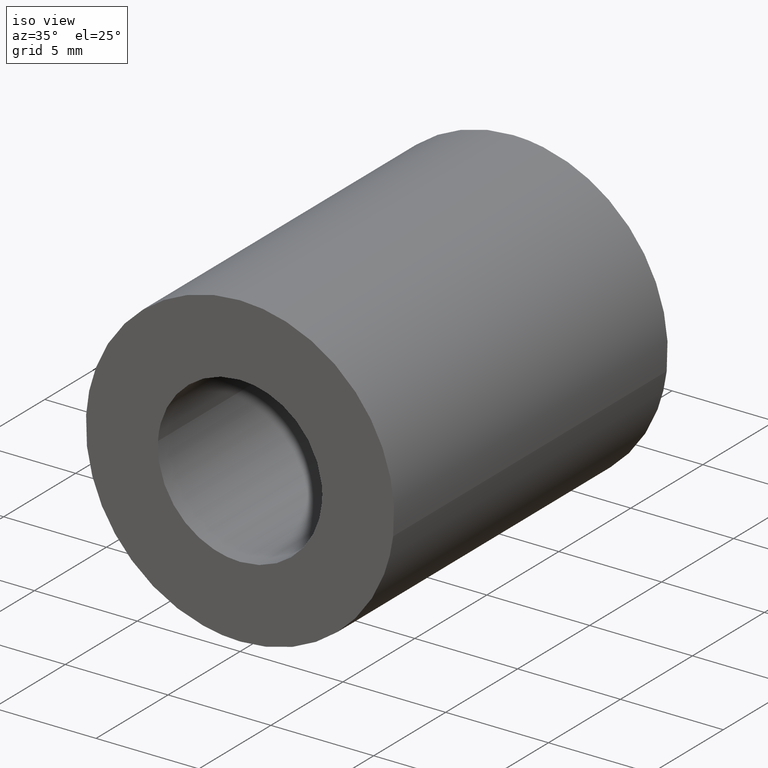
[diagram: clean part render]
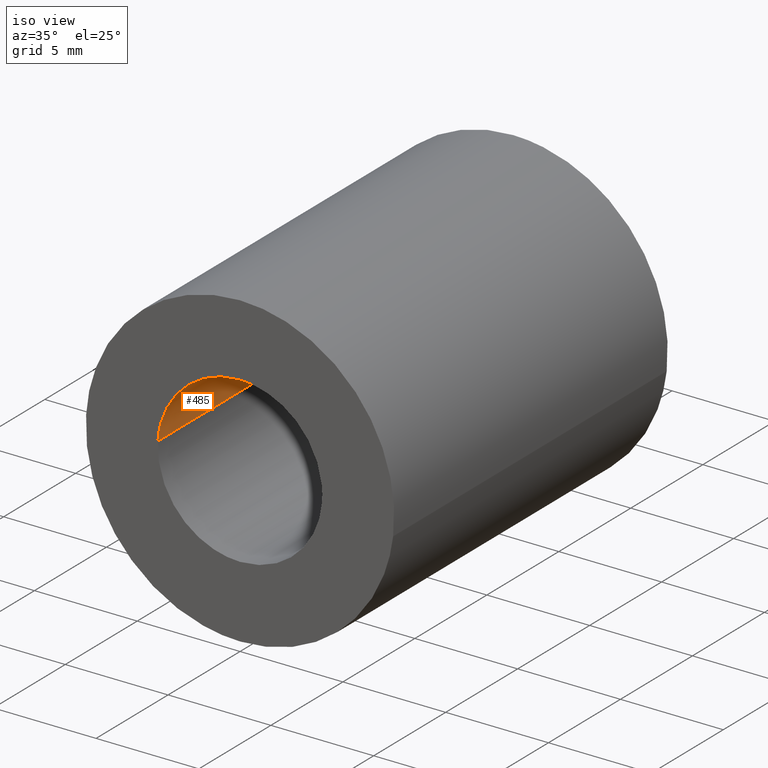
[diagram: same view with one face highlighted and labeled with its STEP entity id]
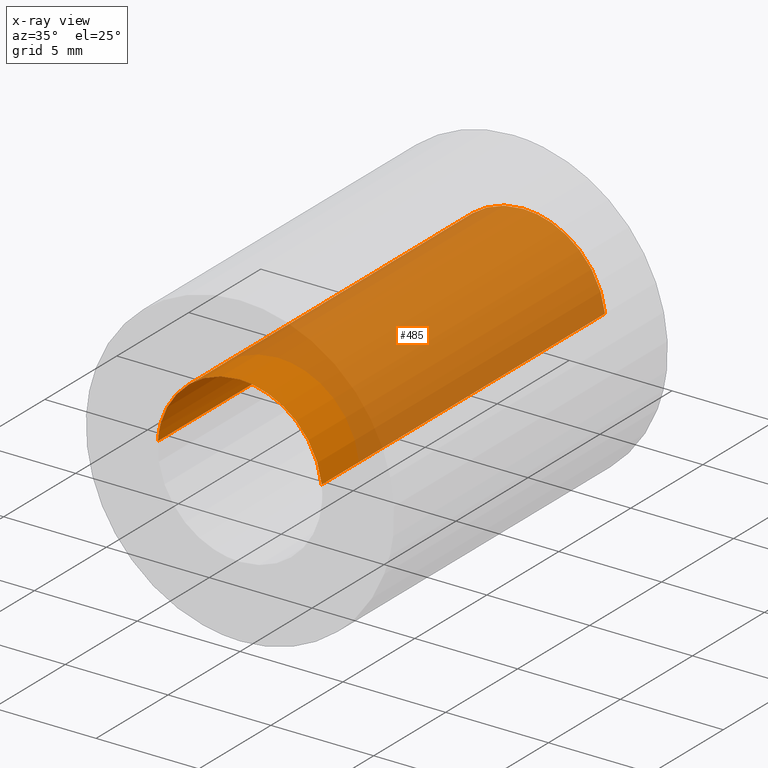
[diagram: x-ray of the same camera — body ghosted, the highlighted face saturated]
A machine part, iso view. The second image highlights one B-rep face of the part: STEP entity #485.
The next image is the same camera in x-ray: the body ghosted, the highlighted face saturated — about 83% of this face is hidden behind the body in this view.
In plain terms, the highlighted face is a freeform B-spline surface patch.
Its self-contained STEP definition (entity closure, byte-faithful):
#372=CARTESIAN_POINT('',(3.980315739117261,20.168412500000002,0.400338886225068));
#373=CARTESIAN_POINT('',(3.977103421615057,20.168412500000009,0.428308385659948));
#374=CARTESIAN_POINT('',(3.591260610344325,20.168412500000002,3.787823839652829));
#375=CARTESIAN_POINT('',(0.244194158139428,20.168412500000009,3.992539193687467));
#376=CARTESIAN_POINT('',(-3.748345035548039,20.168412499999999,4.236733351826894));
#377=CARTESIAN_POINT('',(-3.994158025686370,20.168412500000013,0.217726488917307));
#378=CARTESIAN_POINT('',(-3.995767991604379,20.168412500000002,0.191403778836379));
#379=CARTESIAN_POINT('',(3.980315739117261,-0.504210312500000,0.400338886225068));
#380=CARTESIAN_POINT('',(3.977103421615057,-0.504210312500000,0.428308385659948));
#381=CARTESIAN_POINT('',(3.591260610344325,-0.504210312500000,3.787823839652829));
#382=CARTESIAN_POINT('',(0.244194158139428,-0.504210312500000,3.992539193687467));
#383=CARTESIAN_POINT('',(-3.748345035548039,-0.504210312500000,4.236733351826894));
#384=CARTESIAN_POINT('',(-3.994158025686370,-0.504210312500000,0.217726488917307));
#385=CARTESIAN_POINT('',(-3.995767991604379,-0.504210312500000,0.191403778836379));
#393=(BOUNDED_SURFACE()B_SPLINE_SURFACE(2,1,((#372,#379),(#373,#380),(#374,#381),(#375,#382),(#376,#383),(#377,#384),(#378,#385)),.UNSPECIFIED.,.F.,.F.,.U.)B_SPLINE_SURFACE_WITH_KNOTS((3,1,2,1,3),(2,2),(0.0,0.062301489036522,5.894428447249697,12.521845445219220,12.584150027941480),(0.0,20.672622812500009),.UNSPECIFIED.)GEOMETRIC_REPRESENTATION_ITEM()RATIONAL_B_SPLINE_SURFACE(((0.942326063697294,0.942326063697294),(0.940233507941946,0.940233507941946),(0.742253967444162,0.742253967444162),(1.0,1.0),(0.707106781186548,0.707106781186548),(1.002753499558869,1.002753499558869),(1.005506999117739,1.005506999117739)))REPRESENTATION_ITEM('')SURFACE());
#394=CARTESIAN_POINT('',(3.973876773741819,19.676500000000001,0.456402658970466));
#395=VERTEX_POINT('',#394);
#396=CARTESIAN_POINT('',(0.0,19.676500000000001,4.0));
#397=VERTEX_POINT('',#396);
#398=CARTESIAN_POINT('',(3.973876773741819,19.676499999999994,0.456402658970466));
#399=CARTESIAN_POINT('',(3.566892022859347,19.676499999999994,4.000000000000001));
#400=CARTESIAN_POINT('',(0.0,19.676500000000001,4.0));
#408=(BOUNDED_CURVE()B_SPLINE_CURVE(2,(#398,#399,#400),.UNSPECIFIED.,.F.,.U.)B_SPLINE_CURVE_WITH_KNOTS((3,3),(0.269767755877378,0.500000000000000),.UNSPECIFIED.)CURVE()GEOMETRIC_REPRESENTATION_ITEM()RATIONAL_B_SPLINE_CURVE((0.957343736459148,0.730266147777123,1.0))REPRESENTATION_ITEM(''));
#409=EDGE_CURVE('',#395,#397,#408,.T.);
#410=ORIENTED_EDGE('',*,*,#409,.F.);
#411=CARTESIAN_POINT('',(3.973877159715840,4.142001E-016,0.456399298287494));
#412=VERTEX_POINT('',#411);
#413=CARTESIAN_POINT('',(3.973876773741819,19.676500000000001,0.456402658970466));
#414=CARTESIAN_POINT('',(3.973877159715840,4.142001E-016,0.456399298287494));
#415=QUASI_UNIFORM_CURVE('',1,(#413,#414),.UNSPECIFIED.,.F.,.U.);
#416=EDGE_CURVE('',#395,#412,#415,.T.);
#417=ORIENTED_EDGE('',*,*,#416,.T.);
#418=CARTESIAN_POINT('',(0.0,0.0,4.0));
#419=VERTEX_POINT('',#418);
#420=CARTESIAN_POINT('',(3.973877159715840,4.142001E-016,0.456399298287494));
#421=CARTESIAN_POINT('',(3.566895059196512,0.0,4.0));
#422=CARTESIAN_POINT('',(0.0,0.0,4.0));
#430=(BOUNDED_CURVE()B_SPLINE_CURVE(2,(#420,#421,#422),.UNSPECIFIED.,.F.,.U.)B_SPLINE_CURVE_WITH_KNOTS((3,3),(0.269767612755097,0.500000000000000),.UNSPECIFIED.)CURVE()GEOMETRIC_REPRESENTATION_ITEM()RATIONAL_B_SPLINE_CURVE((0.957344018781762,0.730265980098941,1.0))REPRESENTATION_ITEM(''));
#431=EDGE_CURVE('',#412,#419,#430,.T.);
#432=ORIENTED_EDGE('',*,*,#431,.T.);
#433=CARTESIAN_POINT('',(-3.992539548623593,-6.938894E-016,0.244188354846649));
#434=VERTEX_POINT('',#433);
#435=CARTESIAN_POINT('',(0.0,0.0,4.0));
#436=CARTESIAN_POINT('',(-3.762829747240873,0.0,4.000000000000000));
#437=CARTESIAN_POINT('',(-3.992539548623593,-6.938894E-016,0.244188354846649));
#445=(BOUNDED_CURVE()B_SPLINE_CURVE(2,(#435,#436,#437),.UNSPECIFIED.,.F.,.U.)B_SPLINE_CURVE_WITH_KNOTS((3,3),(0.500000000000000,0.739333213044698),.UNSPECIFIED.)CURVE()GEOMETRIC_REPRESENTATION_ITEM()RATIONAL_B_SPLINE_CURVE((1.0,0.719603699449491,0.976072579191782))REPRESENTATION_ITEM(''));
#446=EDGE_CURVE('',#419,#434,#445,.T.);
#447=ORIENTED_EDGE('',*,*,#446,.T.);
#448=CARTESIAN_POINT('',(-3.992539218268482,19.676500000000001,0.244193756242729));
#449=VERTEX_POINT('',#448);
#450=CARTESIAN_POINT('',(-3.992539218268482,19.676500000000001,0.244193756242729));
#451=CARTESIAN_POINT('',(-3.992539548623593,-6.938894E-016,0.244188354846649));
#452=QUASI_UNIFORM_CURVE('',1,(#450,#451),.UNSPECIFIED.,.F.,.U.);
#453=EDGE_CURVE('',#449,#434,#452,.T.);
#454=ORIENTED_EDGE('',*,*,#453,.F.);
#455=CARTESIAN_POINT('',(-3.987669334933437,19.676500000002310,0.313836382929125));
#456=VERTEX_POINT('',#455);
#457=CARTESIAN_POINT('',(-3.987669334933436,19.676500000002317,0.313836382929124));
#458=CARTESIAN_POINT('',(-3.990408175146816,19.676500000000004,0.279036118412677));
#459=CARTESIAN_POINT('',(-3.992539218268482,19.676499999999997,0.244193756242729));
#467=(BOUNDED_CURVE()B_SPLINE_CURVE(2,(#457,#458,#459),.UNSPECIFIED.,.F.,.U.)B_SPLINE_CURVE_WITH_KNOTS((3,3),(0.736331300631257,0.739332996979756),.UNSPECIFIED.)CURVE()GEOMETRIC_REPRESENTATION_ITEM()RATIONAL_B_SPLINE_CURVE((0.969723356168664,0.972855511811289,0.976072116122905))REPRESENTATION_ITEM(''));
#468=EDGE_CURVE('',#456,#449,#467,.T.);
#469=ORIENTED_EDGE('',*,*,#468,.F.);
#470=CARTESIAN_POINT('',(0.0,19.676500000000001,4.0));
#471=CARTESIAN_POINT('',(-3.697561966600142,19.676500000000001,4.0));
#472=CARTESIAN_POINT('',(-3.987669334933438,19.676500000002317,0.313836382929124));
#480=(BOUNDED_CURVE()B_SPLINE_CURVE(2,(#470,#471,#472),.UNSPECIFIED.,.F.,.U.)B_SPLINE_CURVE_WITH_KNOTS((3,3),(0.500000000000000,0.736331300631256),.UNSPECIFIED.)CURVE()GEOMETRIC_REPRESENTATION_ITEM()RATIONAL_B_SPLINE_CURVE((1.0,0.723120658606967,0.969723356168663))REPRESENTATION_ITEM(''));
#481=EDGE_CURVE('',#397,#456,#480,.T.);
#482=ORIENTED_EDGE('',*,*,#481,.F.);
#483=EDGE_LOOP('',(#410,#417,#432,#447,#454,#469,#482));
#484=FACE_OUTER_BOUND('',#483,.T.);
#485=ADVANCED_FACE('',(#484),#393,.F.);